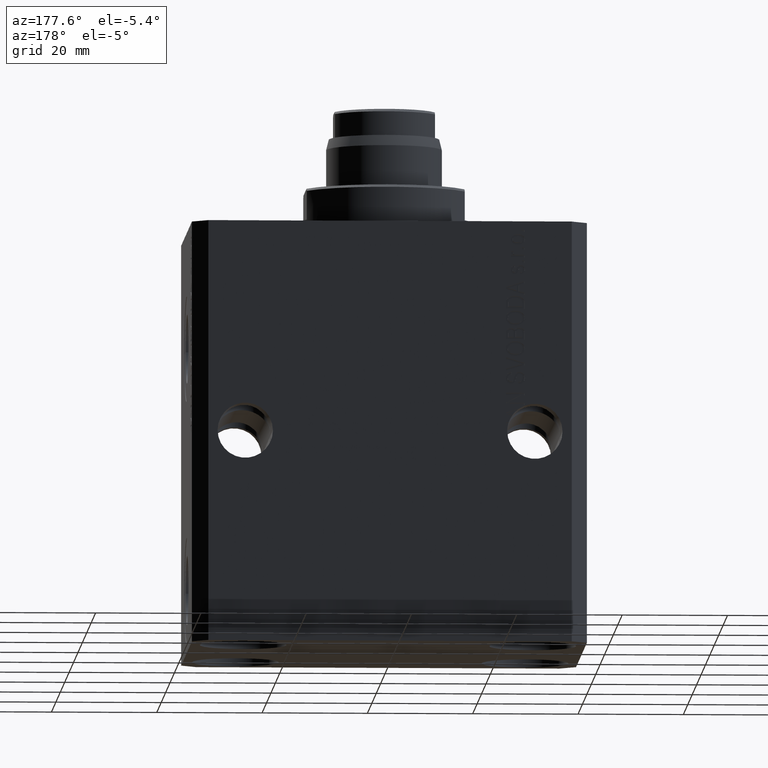
[diagram: clean part render]
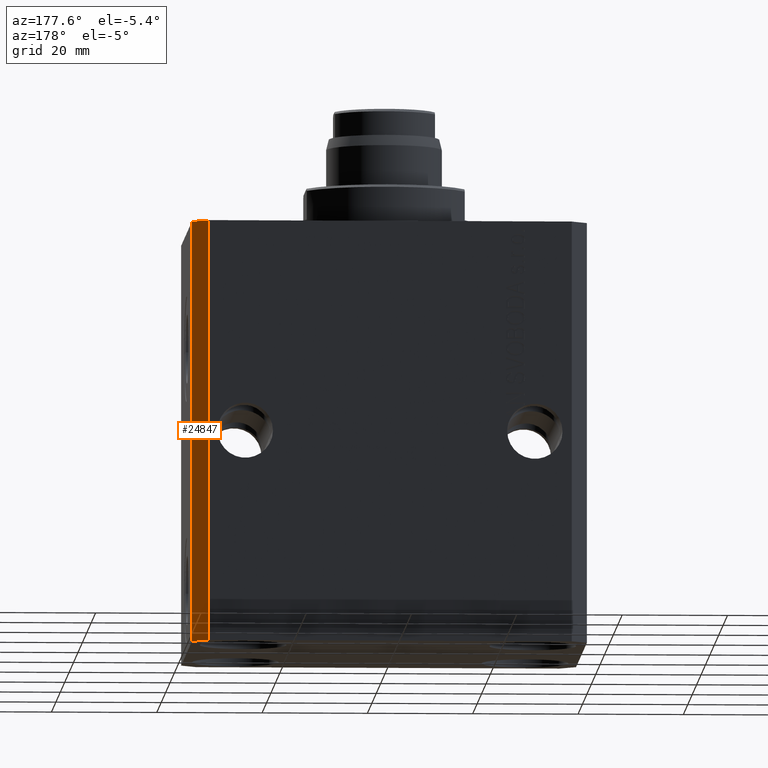
[diagram: same view with one face highlighted and labeled with its STEP entity id]
A machine part, auxiliary view. The second image highlights one B-rep face of the part: STEP entity #24847.
In plain terms, the highlighted planar face has unit normal (0.7071, 0.7071, 0).
Its self-contained STEP definition (entity closure, byte-faithful):
#621 = ORIENTED_EDGE ( 'NONE', *, *, #36564, .F. ) ;
#2106 = VECTOR ( 'NONE', #42154, 1000.000000000000000 ) ;
#3709 = CARTESIAN_POINT ( 'NONE',  ( 37.50000000000051870, 24.49999999999995381, -80.00000000000000000 ) ) ;
#5934 = PLANE ( 'NONE',  #21396 ) ;
#6341 = VERTEX_POINT ( 'NONE', #10537 ) ;
#6592 = LINE ( 'NONE', #36675, #39072 ) ;
#9561 = VERTEX_POINT ( 'NONE', #38950 ) ;
#10537 = CARTESIAN_POINT ( 'NONE',  ( 37.50000000000051870, 24.49999999999995381, -80.00000000000000000 ) ) ;
#10563 = DIRECTION ( 'NONE',  ( -0.7071067811865356934, 0.7071067811865594521, 0.000000000000000000 ) ) ;
#11422 = VERTEX_POINT ( 'NONE', #35707 ) ;
#12721 = LINE ( 'NONE', #31941, #2106 ) ;
#14072 = ORIENTED_EDGE ( 'NONE', *, *, #32739, .T. ) ;
#14143 = LINE ( 'NONE', #3709, #17792 ) ;
#17407 = DIRECTION ( 'NONE',  ( 0.000000000000000000, 0.000000000000000000, 1.000000000000000000 ) ) ;
#17792 = VECTOR ( 'NONE', #40700, 1000.000000000000114 ) ;
#19207 = DIRECTION ( 'NONE',  ( -0.7071067811865356934, 0.7071067811865594521, 0.000000000000000000 ) ) ;
#19425 = CARTESIAN_POINT ( 'NONE',  ( 37.50000000000051870, 24.49999999999995381, -80.00000000000000000 ) ) ;
#19923 = VECTOR ( 'NONE', #17407, 1000.000000000000000 ) ;
#20503 = CARTESIAN_POINT ( 'NONE',  ( 37.50000000000051870, 24.49999999999995381, -80.00000000000000000 ) ) ;
#20718 = LINE ( 'NONE', #20503, #19923 ) ;
#21396 = AXIS2_PLACEMENT_3D ( 'NONE', #19425, #40873, #10563 ) ;
#22740 = FACE_OUTER_BOUND ( 'NONE', #34366, .T. ) ;
#23558 = VERTEX_POINT ( 'NONE', #33230 ) ;
#24115 = EDGE_CURVE ( 'NONE', #9561, #11422, #6592, .T. ) ;
#24847 = ADVANCED_FACE ( 'NONE', ( #22740 ), #5934, .T. ) ;
#31519 = EDGE_CURVE ( 'NONE', #6341, #23558, #14143, .T. ) ;
#31941 = CARTESIAN_POINT ( 'NONE',  ( 34.50000000000056843, 27.50000000000000000, -80.00000000000000000 ) ) ;
#32739 = EDGE_CURVE ( 'NONE', #23558, #11422, #12721, .T. ) ;
#33230 = CARTESIAN_POINT ( 'NONE',  ( 34.50000000000056843, 27.50000000000000000, -80.00000000000000000 ) ) ;
#34366 = EDGE_LOOP ( 'NONE', ( #37288, #621, #37650, #14072 ) ) ;
#35707 = CARTESIAN_POINT ( 'NONE',  ( 34.50000000000056843, 27.50000000000000000, 0.000000000000000000 ) ) ;
#36564 = EDGE_CURVE ( 'NONE', #6341, #9561, #20718, .T. ) ;
#36675 = CARTESIAN_POINT ( 'NONE',  ( 37.50000000000051870, 24.49999999999995381, 0.000000000000000000 ) ) ;
#37288 = ORIENTED_EDGE ( 'NONE', *, *, #24115, .F. ) ;
#37650 = ORIENTED_EDGE ( 'NONE', *, *, #31519, .T. ) ;
#38950 = CARTESIAN_POINT ( 'NONE',  ( 37.50000000000051870, 24.49999999999995381, 0.000000000000000000 ) ) ;
#39072 = VECTOR ( 'NONE', #19207, 1000.000000000000114 ) ;
#40700 = DIRECTION ( 'NONE',  ( -0.7071067811865356934, 0.7071067811865594521, 0.000000000000000000 ) ) ;
#40873 = DIRECTION ( 'NONE',  ( 0.7071067811865594521, 0.7071067811865356934, -0.000000000000000000 ) ) ;
#42154 = DIRECTION ( 'NONE',  ( 0.000000000000000000, 0.000000000000000000, 1.000000000000000000 ) ) ;